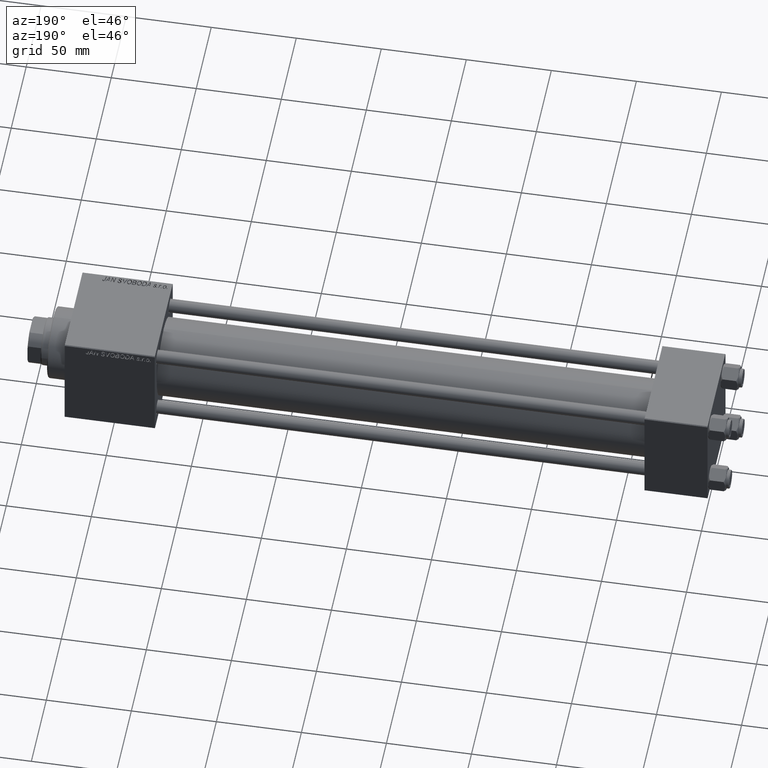
[diagram: clean part render]
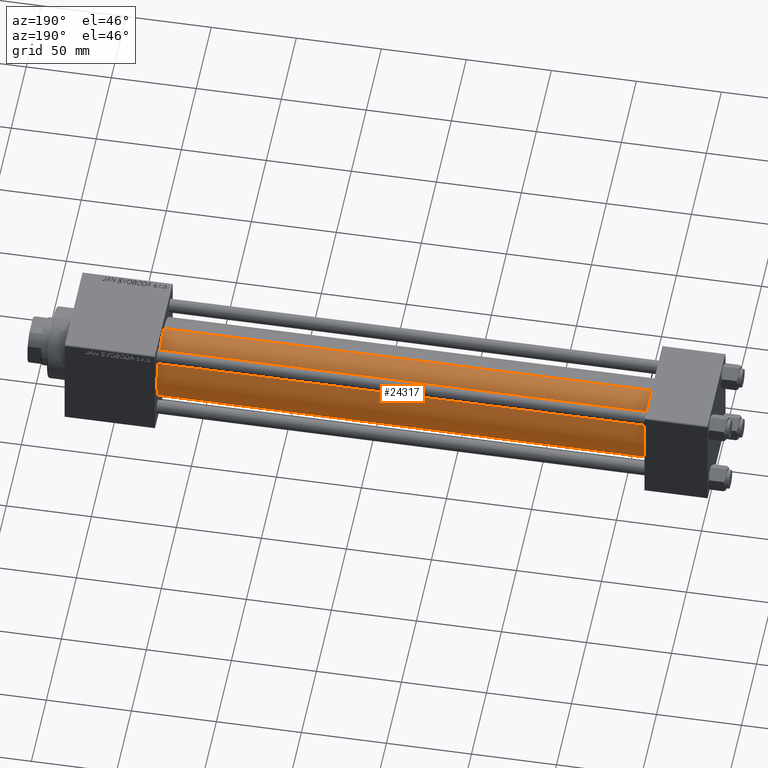
[diagram: same view with one face highlighted and labeled with its STEP entity id]
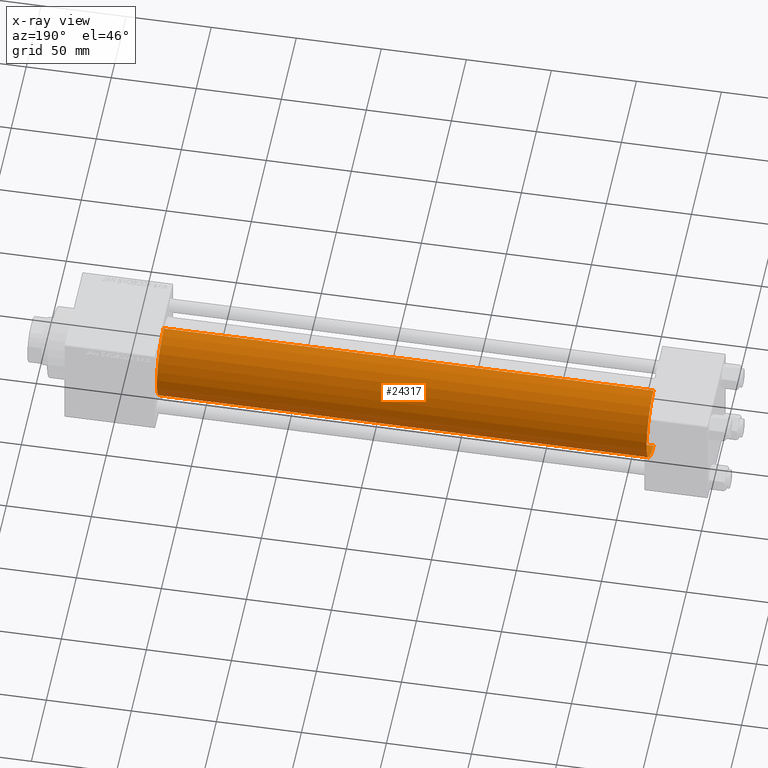
[diagram: x-ray of the same camera — body ghosted, the highlighted face saturated]
A machine part, auxiliary view. The second image highlights one B-rep face of the part: STEP entity #24317.
The next image is the same camera in x-ray: the body ghosted, the highlighted face saturated — about 0% of this face is hidden behind the body in this view.
In plain terms, the highlighted cylindrical surface (partial cylindrical patch) has radius 23 mm, axis along (-1, -0, -0).
Its self-contained STEP definition (entity closure, byte-faithful):
#851 = ORIENTED_EDGE ( 'NONE', *, *, #42718, .F. ) ;
#1098 = AXIS2_PLACEMENT_3D ( 'NONE', #48717, #44403, #29405 ) ;
#2485 = DIRECTION ( 'NONE',  ( -1.000000000000000000, -0.000000000000000000, -0.000000000000000000 ) ) ;
#2612 = CARTESIAN_POINT ( 'NONE',  ( 324.9999999999999432, 2.146024240737016609E-16, -23.00000000000000000 ) ) ;
#7304 = ORIENTED_EDGE ( 'NONE', *, *, #23108, .T. ) ;
#7796 = ORIENTED_EDGE ( 'NONE', *, *, #48103, .F. ) ;
#9591 = AXIS2_PLACEMENT_3D ( 'NONE', #46879, #19192, #35449 ) ;
#13654 = CARTESIAN_POINT ( 'NONE',  ( 324.9999999999999432, 2.146024240737016609E-16, -23.00000000000000000 ) ) ;
#15616 = EDGE_CURVE ( 'NONE', #19738, #20369, #44857, .T. ) ;
#15729 = CARTESIAN_POINT ( 'NONE',  ( 36.99999999999997868, -2.602085213965210642E-15, 23.00000000000000000 ) ) ;
#16080 = CARTESIAN_POINT ( 'NONE',  ( 324.9999999999999432, -2.602085213965210642E-15, 23.00000000000000000 ) ) ;
#17061 = VERTEX_POINT ( 'NONE', #21450 ) ;
#17487 = ORIENTED_EDGE ( 'NONE', *, *, #15616, .T. ) ;
#17617 = CYLINDRICAL_SURFACE ( 'NONE', #34350, 23.00000000000000000 ) ;
#19192 = DIRECTION ( 'NONE',  ( 1.000000000000000000, 0.000000000000000000, 0.000000000000000000 ) ) ;
#19738 = VERTEX_POINT ( 'NONE', #2612 ) ;
#20369 = VERTEX_POINT ( 'NONE', #21254 ) ;
#21254 = CARTESIAN_POINT ( 'NONE',  ( 36.99999999999997868, 2.146024240737016609E-16, -23.00000000000000000 ) ) ;
#21450 = CARTESIAN_POINT ( 'NONE',  ( 324.9999999999999432, -2.602085213965210642E-15, 23.00000000000000000 ) ) ;
#22636 = CARTESIAN_POINT ( 'NONE',  ( 324.9999999999999432, -2.602085213965210642E-15, 0.000000000000000000 ) ) ;
#23108 = EDGE_CURVE ( 'NONE', #20369, #43300, #48093, .T. ) ;
#24317 = ADVANCED_FACE ( 'NONE', ( #24753 ), #17617, .T. ) ;
#24753 = FACE_OUTER_BOUND ( 'NONE', #33823, .T. ) ;
#29405 = DIRECTION ( 'NONE',  ( 0.000000000000000000, 0.000000000000000000, 1.000000000000000000 ) ) ;
#33116 = DIRECTION ( 'NONE',  ( -1.000000000000000000, -0.000000000000000000, -0.000000000000000000 ) ) ;
#33823 = EDGE_LOOP ( 'NONE', ( #851, #17487, #7304, #7796 ) ) ;
#34350 = AXIS2_PLACEMENT_3D ( 'NONE', #22636, #33116, #48612 ) ;
#35449 = DIRECTION ( 'NONE',  ( 0.000000000000000000, 0.000000000000000000, -1.000000000000000000 ) ) ;
#39193 = DIRECTION ( 'NONE',  ( -1.000000000000000000, -0.000000000000000000, -0.000000000000000000 ) ) ;
#39439 = LINE ( 'NONE', #16080, #44360 ) ;
#42718 = EDGE_CURVE ( 'NONE', #19738, #17061, #46886, .T. ) ;
#43300 = VERTEX_POINT ( 'NONE', #15729 ) ;
#44360 = VECTOR ( 'NONE', #39193, 1000.000000000000000 ) ;
#44403 = DIRECTION ( 'NONE',  ( 1.000000000000000000, -0.000000000000000000, 0.000000000000000000 ) ) ;
#44857 = LINE ( 'NONE', #13654, #47959 ) ;
#46879 = CARTESIAN_POINT ( 'NONE',  ( 324.9999999999999432, -2.602085213965210642E-15, 0.000000000000000000 ) ) ;
#46886 = CIRCLE ( 'NONE', #9591, 23.00000000000000000 ) ;
#47959 = VECTOR ( 'NONE', #2485, 1000.000000000000000 ) ;
#48093 = CIRCLE ( 'NONE', #1098, 23.00000000000000000 ) ;
#48103 = EDGE_CURVE ( 'NONE', #17061, #43300, #39439, .T. ) ;
#48612 = DIRECTION ( 'NONE',  ( 0.000000000000000000, 0.000000000000000000, 1.000000000000000000 ) ) ;
#48717 = CARTESIAN_POINT ( 'NONE',  ( 36.99999999999997868, -2.602085213965210642E-15, 0.000000000000000000 ) ) ;